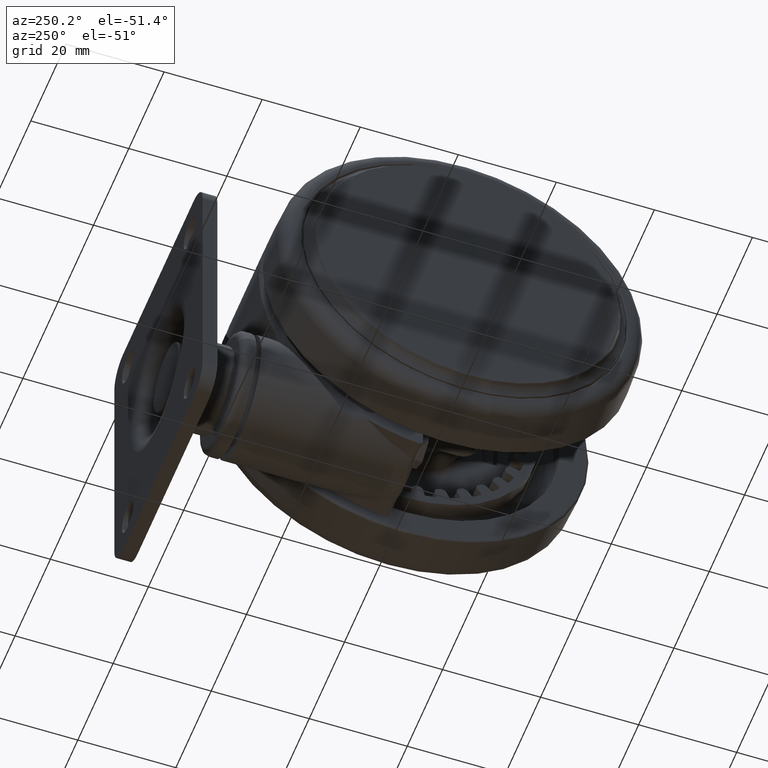
[diagram: clean part render]
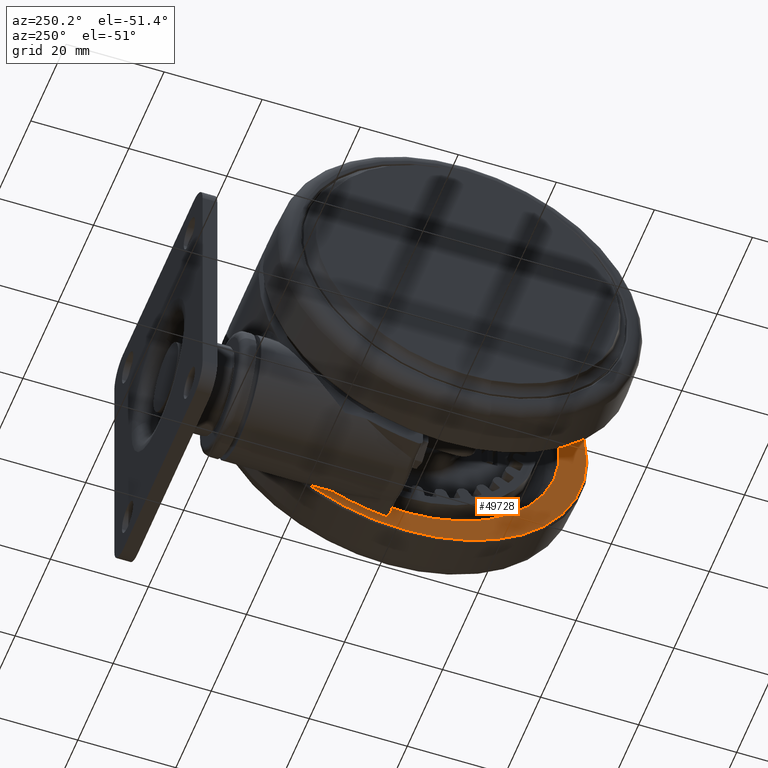
[diagram: same view with one face highlighted and labeled with its STEP entity id]
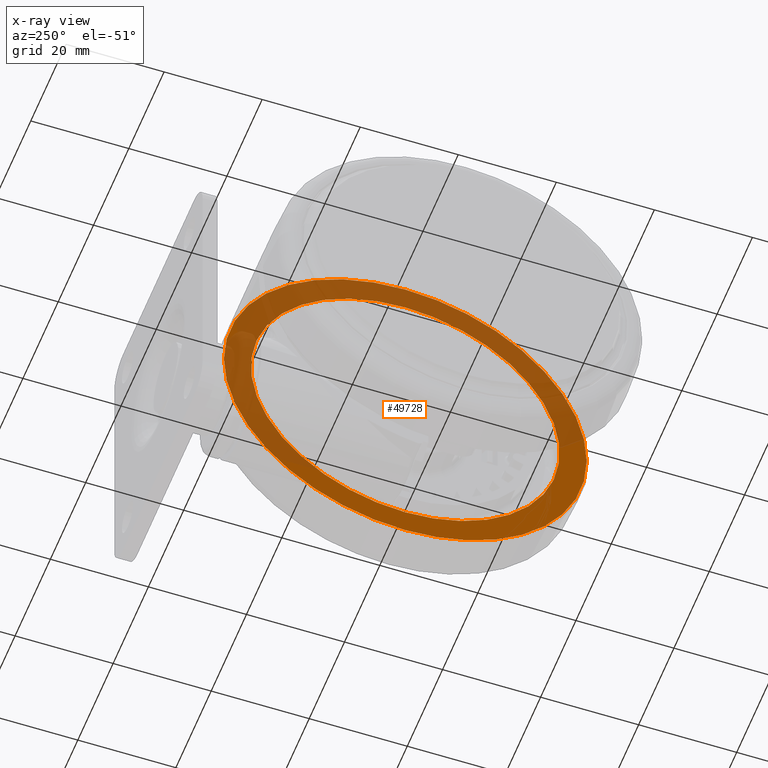
[diagram: x-ray of the same camera — body ghosted, the highlighted face saturated]
A machine part, auxiliary view. The second image highlights one B-rep face of the part: STEP entity #49728.
The next image is the same camera in x-ray: the body ghosted, the highlighted face saturated — about 62% of this face is hidden behind the body in this view.
In plain terms, the highlighted planar face has unit normal (-1, -0, 0).
Its self-contained STEP definition (entity closure, byte-faithful):
#1141 = PLANE ( 'NONE',  #9631 ) ;
#3938 = CIRCLE ( 'NONE', #58134, 37.00068523262270800 ) ;
#4873 = AXIS2_PLACEMENT_3D ( 'NONE', #51057, #23906, #55674 ) ;
#5566 = EDGE_LOOP ( 'NONE', ( #20941, #16795 ) ) ;
#5721 = DIRECTION ( 'NONE',  ( 3.275157922644210200E-015, -1.000000000000000000, 0.0000000000000000000 ) ) ;
#9631 = AXIS2_PLACEMENT_3D ( 'NONE', #51035, #32987, #5721 ) ;
#10053 = DIRECTION ( 'NONE',  ( 0.0000000000000000000, 0.0000000000000000000, 1.000000000000000000 ) ) ;
#11484 = DIRECTION ( 'NONE',  ( -0.0000000000000000000, 0.0000000000000000000, -1.000000000000000000 ) ) ;
#12606 = CARTESIAN_POINT ( 'NONE',  ( -1.070251119806067900E-013, 31.50000000000003600, -12.30000000000003800 ) ) ;
#13585 = FACE_OUTER_BOUND ( 'NONE', #50864, .T. ) ;
#15848 = EDGE_CURVE ( 'NONE', #17582, #32504, #3938, .T. ) ;
#16130 = CIRCLE ( 'NONE', #32965, 37.00068523262270800 ) ;
#16795 = ORIENTED_EDGE ( 'NONE', *, *, #38097, .F. ) ;
#17520 = EDGE_CURVE ( 'NONE', #58507, #48961, #27993, .T. ) ;
#17582 = VERTEX_POINT ( 'NONE', #47267 ) ;
#20941 = ORIENTED_EDGE ( 'NONE', *, *, #17520, .F. ) ;
#21046 = CARTESIAN_POINT ( 'NONE',  ( 1.031674745632926200E-013, -31.49999999999996400, -12.30000000000003800 ) ) ;
#23907 = DIRECTION ( 'NONE',  ( 0.0000000000000000000, 0.0000000000000000000, 1.000000000000000000 ) ) ;
#23906 = DIRECTION ( 'NONE',  ( -0.0000000000000000000, 0.0000000000000000000, -1.000000000000000000 ) ) ;
#24213 = CARTESIAN_POINT ( 'NONE',  ( -1.211830873828888800E-013, 37.00068523262273600, -12.30000000000006600 ) ) ;
#27993 = CIRCLE ( 'NONE', #4873, 31.50000000000000000 ) ;
#32504 = VERTEX_POINT ( 'NONE', #24213 ) ;
#32965 = AXIS2_PLACEMENT_3D ( 'NONE', #37272, #10053, #41853 ) ;
#32987 = DIRECTION ( 'NONE',  ( 0.0000000000000000000, 0.0000000000000000000, -1.000000000000000000 ) ) ;
#36366 = EDGE_CURVE ( 'NONE', #32504, #17582, #16130, .T. ) ;
#37272 = CARTESIAN_POINT ( 'NONE',  ( 0.0000000000000000000, 3.469446951953614200E-014, -12.30000000000006600 ) ) ;
#38097 = EDGE_CURVE ( 'NONE', #48961, #58507, #49719, .T. ) ;
#38700 = CARTESIAN_POINT ( 'NONE',  ( 0.0000000000000000000, 3.469446951953614200E-014, -12.30000000000003800 ) ) ;
#41853 = DIRECTION ( 'NONE',  ( -3.275157922644209800E-015, 1.000000000000000000, 0.0000000000000000000 ) ) ;
#43292 = DIRECTION ( 'NONE',  ( 3.275157922644210200E-015, -1.000000000000000000, 0.0000000000000000000 ) ) ;
#45217 = AXIS2_PLACEMENT_3D ( 'NONE', #38700, #11484, #43292 ) ;
#47267 = CARTESIAN_POINT ( 'NONE',  ( 1.174389034558025700E-013, -37.00068523262267200, -12.30000000000006600 ) ) ;
#48961 = VERTEX_POINT ( 'NONE', #12606 ) ;
#49719 = CIRCLE ( 'NONE', #45217, 31.50000000000000000 ) ;
#49728 = ADVANCED_FACE ( 'NONE', ( #13585, #49800 ), #1141, .T. ) ;
#49800 = FACE_BOUND ( 'NONE', #5566, .T. ) ;
#50864 = EDGE_LOOP ( 'NONE', ( #51211, #58889 ) ) ;
#51035 = CARTESIAN_POINT ( 'NONE',  ( -1.211830873828888800E-013, 37.00068523262273600, -12.30000000000005000 ) ) ;
#51058 = CARTESIAN_POINT ( 'NONE',  ( 0.0000000000000000000, 3.469446951953614200E-014, -12.30000000000006600 ) ) ;
#51057 = CARTESIAN_POINT ( 'NONE',  ( 0.0000000000000000000, 3.469446951953614200E-014, -12.30000000000003800 ) ) ;
#51211 = ORIENTED_EDGE ( 'NONE', *, *, #36366, .F. ) ;
#55675 = DIRECTION ( 'NONE',  ( -3.275157922644209800E-015, 1.000000000000000000, 0.0000000000000000000 ) ) ;
#55674 = DIRECTION ( 'NONE',  ( 3.275157922644210200E-015, -1.000000000000000000, 0.0000000000000000000 ) ) ;
#58134 = AXIS2_PLACEMENT_3D ( 'NONE', #51058, #23907, #55675 ) ;
#58507 = VERTEX_POINT ( 'NONE', #21046 ) ;
#58889 = ORIENTED_EDGE ( 'NONE', *, *, #15848, .F. ) ;